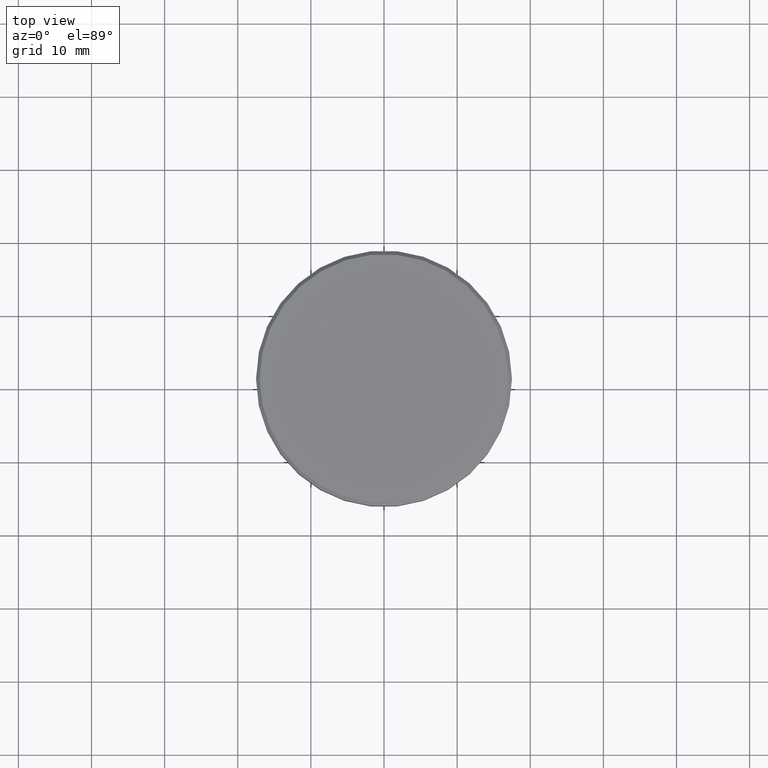
[diagram: clean part render]
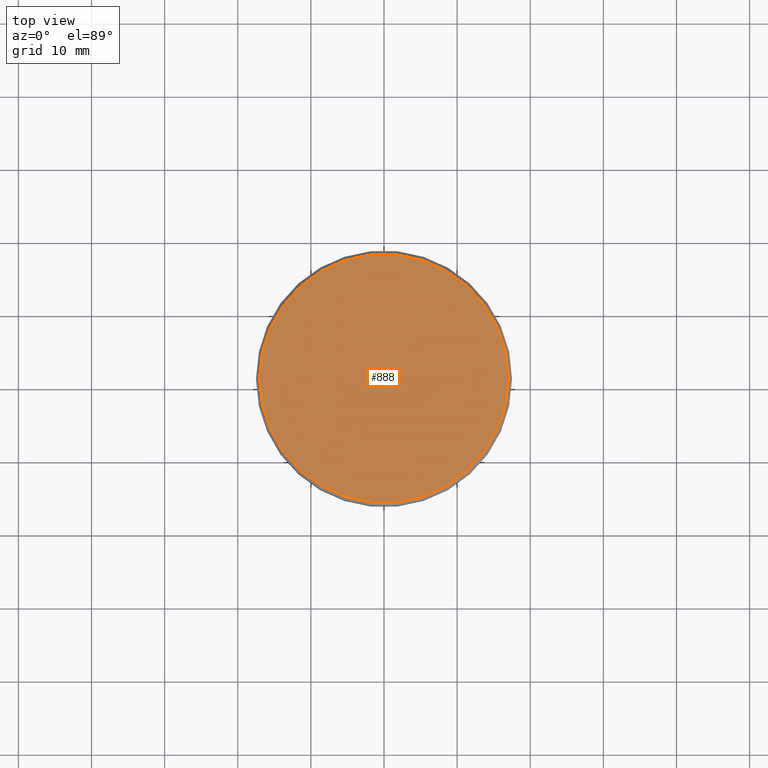
[diagram: same view with one face highlighted and labeled with its STEP entity id]
A machine part, top view. The second image highlights one B-rep face of the part: STEP entity #888.
In plain terms, the highlighted planar face has unit normal (0, -0, 1).
Its self-contained STEP definition (entity closure, byte-faithful):
#112 = DIRECTION ( 'NONE',  ( 0.000000000000000000, -0.000000000000000000, 1.000000000000000000 ) ) ;
#195 = PLANE ( 'NONE',  #290 ) ;
#275 = FACE_OUTER_BOUND ( 'NONE', #506, .T. ) ;
#290 = AXIS2_PLACEMENT_3D ( 'NONE', #376, #112, #547 ) ;
#306 = AXIS2_PLACEMENT_3D ( 'NONE', #523, #1169, #980 ) ;
#376 = CARTESIAN_POINT ( 'NONE',  ( 0.000000000000000000, 0.000000000000000000, 0.000000000000000000 ) ) ;
#425 = CARTESIAN_POINT ( 'NONE',  ( 0.000000000000000000, 0.000000000000000000, 0.000000000000000000 ) ) ;
#444 = VERTEX_POINT ( 'NONE', #1094 ) ;
#449 = EDGE_CURVE ( 'NONE', #444, #989, #1096, .T. ) ;
#506 = EDGE_LOOP ( 'NONE', ( #634, #543 ) ) ;
#523 = CARTESIAN_POINT ( 'NONE',  ( 0.000000000000000000, 0.000000000000000000, 0.000000000000000000 ) ) ;
#543 = ORIENTED_EDGE ( 'NONE', *, *, #844, .T. ) ;
#547 = DIRECTION ( 'NONE',  ( 1.000000000000000000, 0.000000000000000000, 0.000000000000000000 ) ) ;
#634 = ORIENTED_EDGE ( 'NONE', *, *, #449, .T. ) ;
#836 = CARTESIAN_POINT ( 'NONE',  ( 16.99999999999998579, 2.112515728529183278E-15, 0.000000000000000000 ) ) ;
#844 = EDGE_CURVE ( 'NONE', #989, #444, #894, .T. ) ;
#888 = ADVANCED_FACE ( 'NONE', ( #275 ), #195, .T. ) ;
#894 = CIRCLE ( 'NONE', #306, 16.99999999999998579 ) ;
#980 = DIRECTION ( 'NONE',  ( 1.000000000000000000, 0.000000000000000000, 0.000000000000000000 ) ) ;
#986 = DIRECTION ( 'NONE',  ( 1.000000000000000000, 0.000000000000000000, 0.000000000000000000 ) ) ;
#989 = VERTEX_POINT ( 'NONE', #836 ) ;
#1003 = DIRECTION ( 'NONE',  ( -0.000000000000000000, -0.000000000000000000, 1.000000000000000000 ) ) ;
#1094 = CARTESIAN_POINT ( 'NONE',  ( -16.99999999999998579, 0.000000000000000000, 0.000000000000000000 ) ) ;
#1096 = CIRCLE ( 'NONE', #1111, 16.99999999999998579 ) ;
#1111 = AXIS2_PLACEMENT_3D ( 'NONE', #425, #1003, #986 ) ;
#1169 = DIRECTION ( 'NONE',  ( -0.000000000000000000, -0.000000000000000000, 1.000000000000000000 ) ) ;